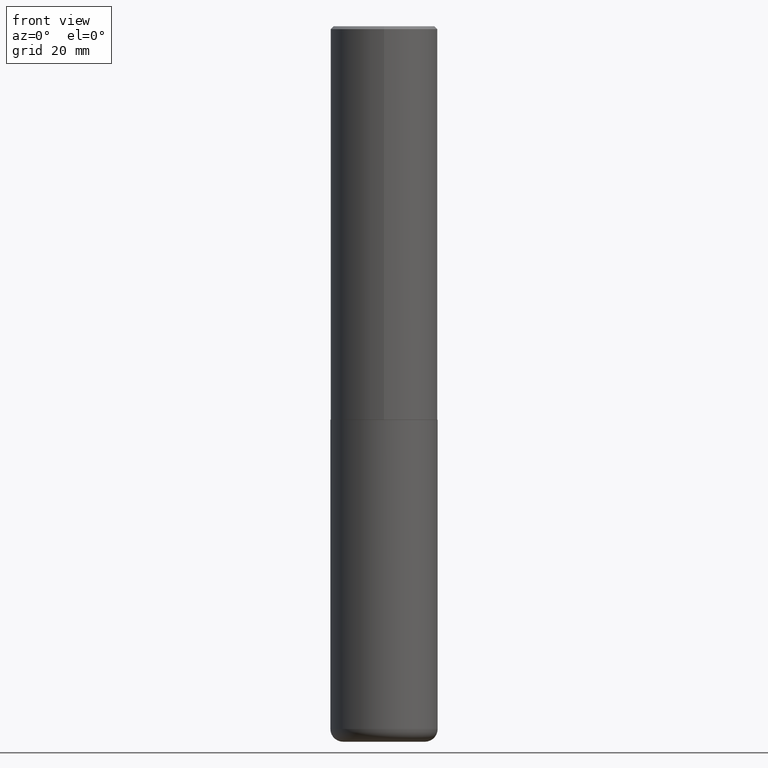
[diagram: clean part render]
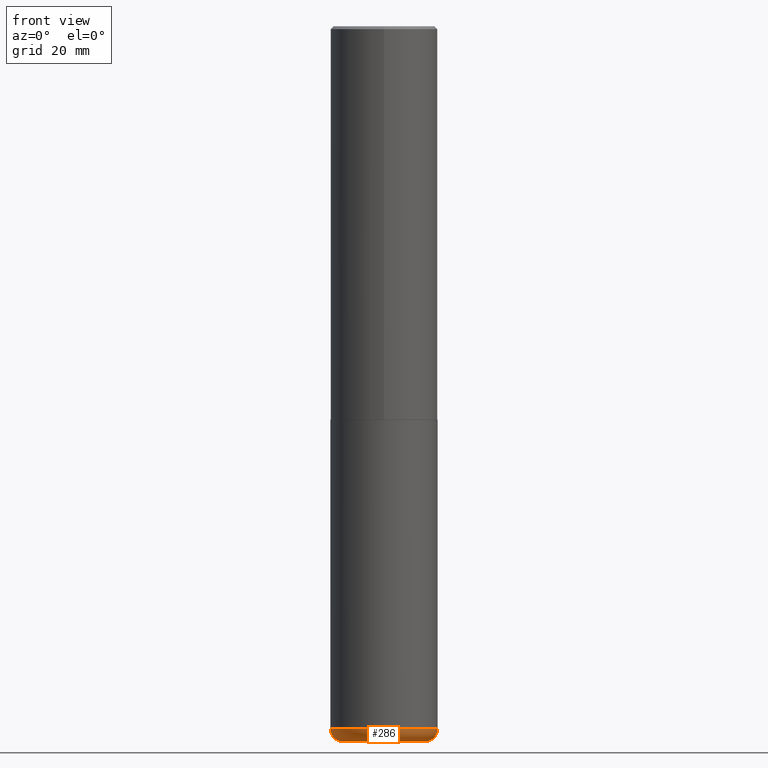
[diagram: same view with one face highlighted and labeled with its STEP entity id]
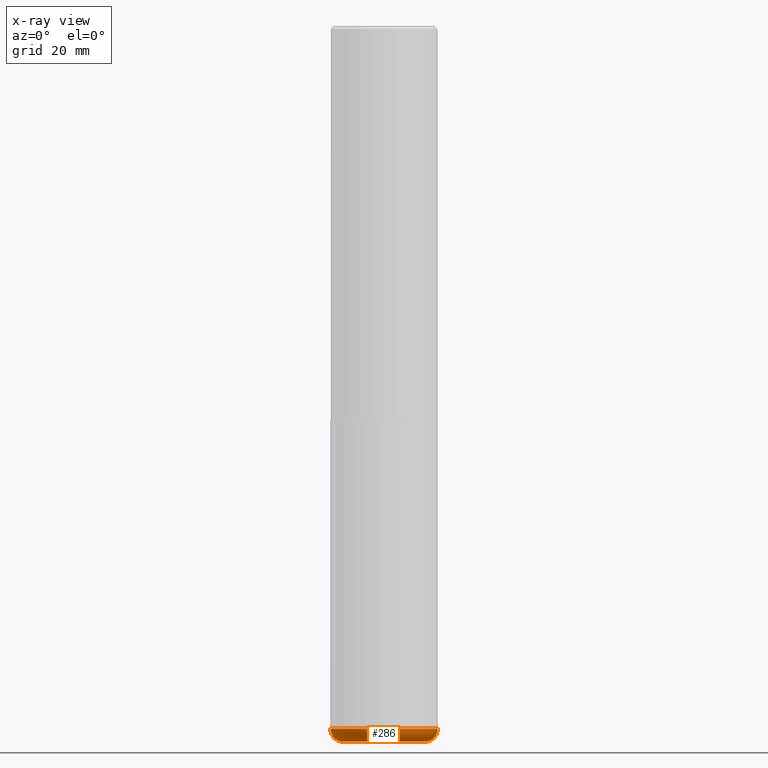
[diagram: x-ray of the same camera — body ghosted, the highlighted face saturated]
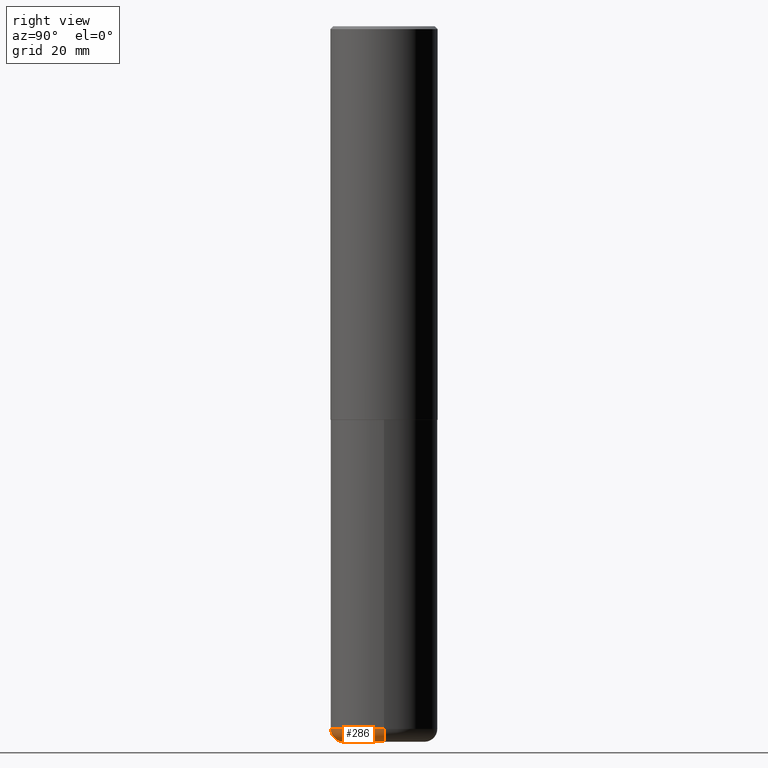
[diagram: same view with one face highlighted and labeled with its STEP entity id]
A machine part, front view. The second image highlights one B-rep face of the part: STEP entity #286.
The next image is the same camera in x-ray: the body ghosted, the highlighted face saturated — about 0% of this face is hidden behind the body in this view.
A second angle (right view) of the same face is appended — the face is thin or edge-on in the first view.
In plain terms, the highlighted toroidal blend (fillet) surface has major radius 7.239 mm and minor (blend) radius 2.286 mm.
Its self-contained STEP definition (entity closure, byte-faithful):
#1 = ORIENTED_EDGE ( 'NONE', *, *, #99, .F. ) ;
#15 = DIRECTION ( 'NONE',  ( -2.445468806185136597E-29, 3.491481338843145583E-15, 1.000000000000000000 ) ) ;
#45 = CARTESIAN_POINT ( 'NONE',  ( 1.222734403092568523E-28, -1.745740669421572989E-14, -5.000000000000000000 ) ) ;
#52 = EDGE_CURVE ( 'NONE', #260, #225, #54, .T. ) ;
#54 = CIRCLE ( 'NONE', #152, 0.2850000000000000311 ) ;
#61 = CARTESIAN_POINT ( 'NONE',  ( 1.200725183836902132E-28, -1.714317337371984662E-14, -4.910000000000000142 ) ) ;
#64 = EDGE_LOOP ( 'NONE', ( #355, #393, #75, #1 ) ) ;
#75 = ORIENTED_EDGE ( 'NONE', *, *, #85, .T. ) ;
#77 = EDGE_CURVE ( 'NONE', #260, #403, #88, .T. ) ;
#82 = DIRECTION ( 'NONE',  ( 7.105427357601001859E-15, 1.000000000000000000, -3.491481338843145583E-15 ) ) ;
#84 = CARTESIAN_POINT ( 'NONE',  ( 1.200725183836902132E-28, -1.714317337371984662E-14, -4.910000000000000142 ) ) ;
#85 = EDGE_CURVE ( 'NONE', #225, #98, #328, .T. ) ;
#88 = CIRCLE ( 'NONE', #257, 0.08999999999999992728 ) ;
#98 = VERTEX_POINT ( 'NONE', #178 ) ;
#99 = EDGE_CURVE ( 'NONE', #403, #98, #228, .T. ) ;
#109 = DIRECTION ( 'NONE',  ( -6.982962677686266711E-15, -1.000000000000000000, 3.491481338843145583E-15 ) ) ;
#152 = AXIS2_PLACEMENT_3D ( 'NONE', #45, #308, #181 ) ;
#165 = CARTESIAN_POINT ( 'NONE',  ( -0.3749999999999999445, -1.447863811461947092E-14, -4.910000000000000142 ) ) ;
#176 = DIRECTION ( 'NONE',  ( 1.000000000000000000, -6.982962677686269077E-15, 4.883557194083113462E-29 ) ) ;
#178 = CARTESIAN_POINT ( 'NONE',  ( 0.3749999999999999445, -1.976178437785219664E-14, -4.910000000000000142 ) ) ;
#181 = DIRECTION ( 'NONE',  ( 1.000000000000000000, -6.982962677686266711E-15, 0.000000000000000000 ) ) ;
#210 = DIRECTION ( 'NONE',  ( -1.000000000000000000, 7.105427357600996337E-15, 0.000000000000000000 ) ) ;
#218 = DIRECTION ( 'NONE',  ( 1.000000000000000000, -6.982962677686269077E-15, 0.000000000000000000 ) ) ;
#225 = VERTEX_POINT ( 'NONE', #351 ) ;
#228 = CIRCLE ( 'NONE', #356, 0.3749999999999999445 ) ;
#257 = AXIS2_PLACEMENT_3D ( 'NONE', #346, #82, #210 ) ;
#260 = VERTEX_POINT ( 'NONE', #381 ) ;
#286 = ADVANCED_FACE ( 'NONE', ( #387 ), #357, .T. ) ;
#308 = DIRECTION ( 'NONE',  ( -2.445468806185136597E-29, 3.491481338843145583E-15, 1.000000000000000000 ) ) ;
#318 = DIRECTION ( 'NONE',  ( 1.000000000000000000, -6.982962677686273810E-15, 0.000000000000000000 ) ) ;
#328 = CIRCLE ( 'NONE', #388, 0.08999999999999992728 ) ;
#346 = CARTESIAN_POINT ( 'NONE',  ( -0.2850000000000000311, -1.511812657680356008E-14, -4.910000000000000142 ) ) ;
#351 = CARTESIAN_POINT ( 'NONE',  ( 0.2850000000000000311, -1.944755105735631653E-14, -5.000000000000000000 ) ) ;
#355 = ORIENTED_EDGE ( 'NONE', *, *, #77, .F. ) ;
#356 = AXIS2_PLACEMENT_3D ( 'NONE', #84, #15, #218 ) ;
#357 = TOROIDAL_SURFACE ( 'NONE', #413, 0.2850000000000000311, 0.08999999999999989952 ) ;
#370 = DIRECTION ( 'NONE',  ( -2.445468806185136597E-29, 3.491481338843145583E-15, 1.000000000000000000 ) ) ;
#381 = CARTESIAN_POINT ( 'NONE',  ( -0.2850000000000000311, -1.495549900595945556E-14, -5.000000000000000000 ) ) ;
#387 = FACE_OUTER_BOUND ( 'NONE', #64, .T. ) ;
#388 = AXIS2_PLACEMENT_3D ( 'NONE', #411, #109, #318 ) ;
#393 = ORIENTED_EDGE ( 'NONE', *, *, #52, .T. ) ;
#403 = VERTEX_POINT ( 'NONE', #165 ) ;
#411 = CARTESIAN_POINT ( 'NONE',  ( 0.2850000000000000311, -1.913331773686043011E-14, -4.910000000000000142 ) ) ;
#413 = AXIS2_PLACEMENT_3D ( 'NONE', #61, #370, #176 ) ;